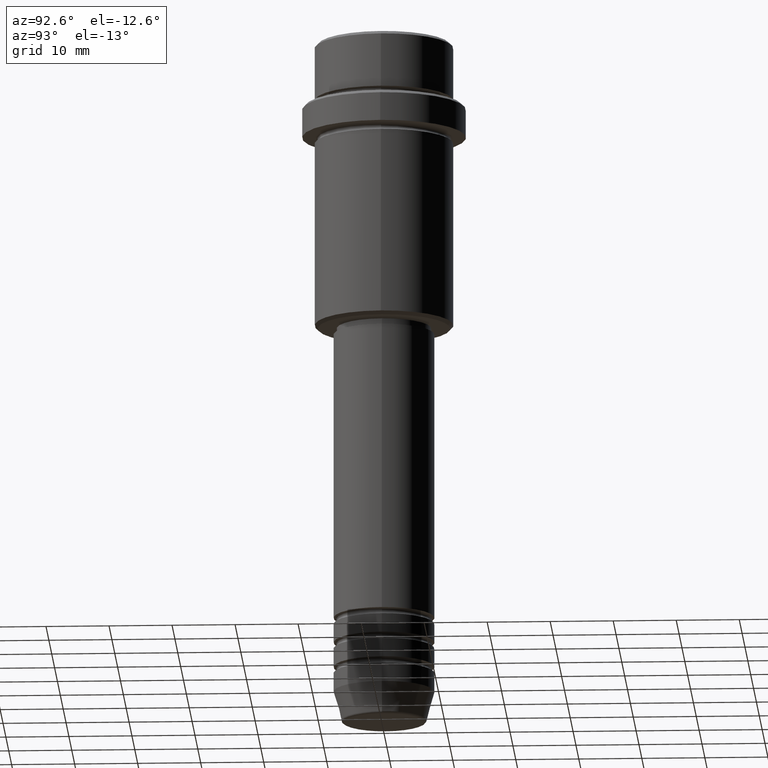
[diagram: clean part render]
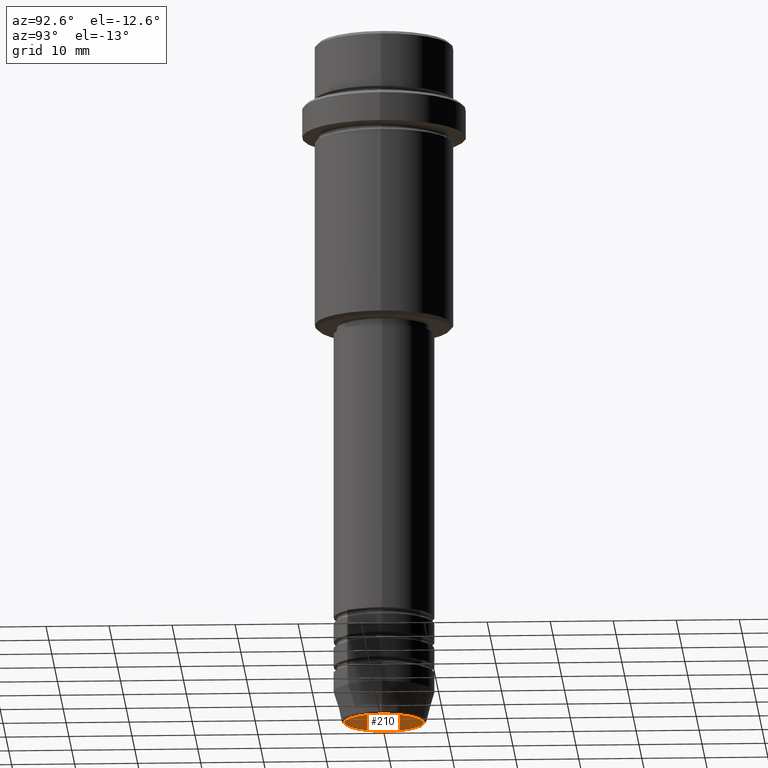
[diagram: same view with one face highlighted and labeled with its STEP entity id]
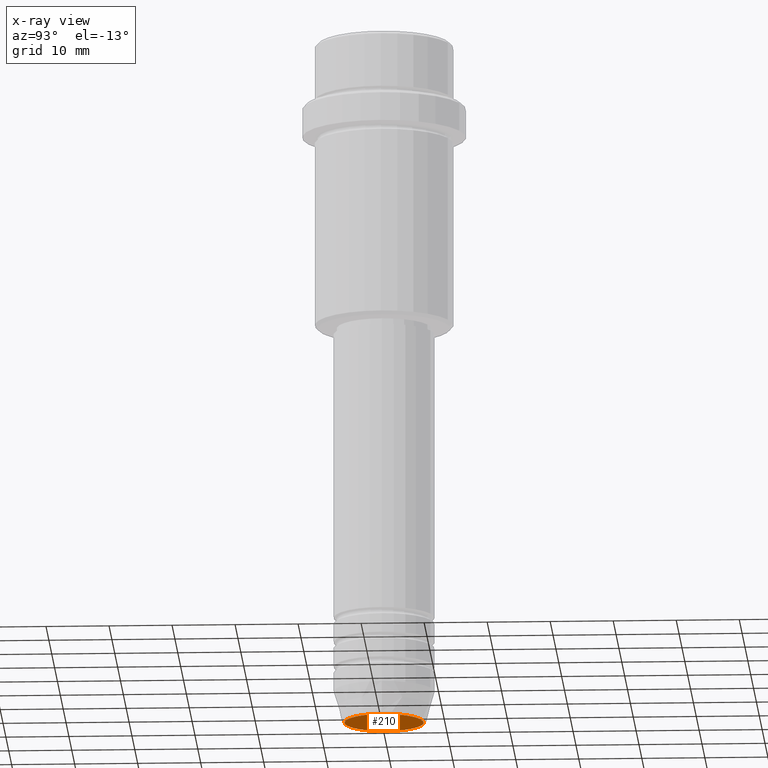
[diagram: x-ray of the same camera — body ghosted, the highlighted face saturated]
A machine part, auxiliary view. The second image highlights one B-rep face of the part: STEP entity #210.
The next image is the same camera in x-ray: the body ghosted, the highlighted face saturated — about 0% of this face is hidden behind the body in this view.
In plain terms, the highlighted planar face has unit normal (0, -0, 1).
Its self-contained STEP definition (entity closure, byte-faithful):
#30 = EDGE_CURVE ( 'NONE', #1284, #937, #1385, .T. ) ;
#129 = CIRCLE ( 'NONE', #930, 6.276590543854900339 ) ;
#191 = DIRECTION ( 'NONE',  ( 1.000000000000000000, 0.000000000000000000, 0.000000000000000000 ) ) ;
#210 = ADVANCED_FACE ( 'NONE', ( #636 ), #1174, .F. ) ;
#226 = CARTESIAN_POINT ( 'NONE',  ( 0.000000000000000000, 0.000000000000000000, -110.0000000000000142 ) ) ;
#306 = DIRECTION ( 'NONE',  ( 0.000000000000000000, -0.000000000000000000, 1.000000000000000000 ) ) ;
#351 = DIRECTION ( 'NONE',  ( 0.000000000000000000, 0.000000000000000000, -1.000000000000000000 ) ) ;
#399 = CARTESIAN_POINT ( 'NONE',  ( 0.000000000000000000, 0.000000000000000000, -110.0000000000000142 ) ) ;
#413 = CARTESIAN_POINT ( 'NONE',  ( 0.000000000000000000, 0.000000000000000000, -110.0000000000000142 ) ) ;
#636 = FACE_OUTER_BOUND ( 'NONE', #1300, .T. ) ;
#782 = DIRECTION ( 'NONE',  ( 1.000000000000000000, 0.000000000000000000, 0.000000000000000000 ) ) ;
#799 = CARTESIAN_POINT ( 'NONE',  ( 6.276590543854900339, 0.000000000000000000, -110.0000000000000142 ) ) ;
#833 = DIRECTION ( 'NONE',  ( 0.000000000000000000, 0.000000000000000000, -1.000000000000000000 ) ) ;
#853 = ORIENTED_EDGE ( 'NONE', *, *, #30, .T. ) ;
#856 = AXIS2_PLACEMENT_3D ( 'NONE', #226, #351, #782 ) ;
#880 = ORIENTED_EDGE ( 'NONE', *, *, #1161, .T. ) ;
#930 = AXIS2_PLACEMENT_3D ( 'NONE', #399, #833, #1271 ) ;
#937 = VERTEX_POINT ( 'NONE', #1358 ) ;
#1161 = EDGE_CURVE ( 'NONE', #937, #1284, #129, .T. ) ;
#1174 = PLANE ( 'NONE',  #1406 ) ;
#1271 = DIRECTION ( 'NONE',  ( 1.000000000000000000, 0.000000000000000000, 0.000000000000000000 ) ) ;
#1284 = VERTEX_POINT ( 'NONE', #799 ) ;
#1300 = EDGE_LOOP ( 'NONE', ( #853, #880 ) ) ;
#1358 = CARTESIAN_POINT ( 'NONE',  ( -6.276590543854900339, 7.982336011935115425E-16, -110.0000000000000142 ) ) ;
#1385 = CIRCLE ( 'NONE', #856, 6.276590543854900339 ) ;
#1406 = AXIS2_PLACEMENT_3D ( 'NONE', #413, #306, #191 ) ;